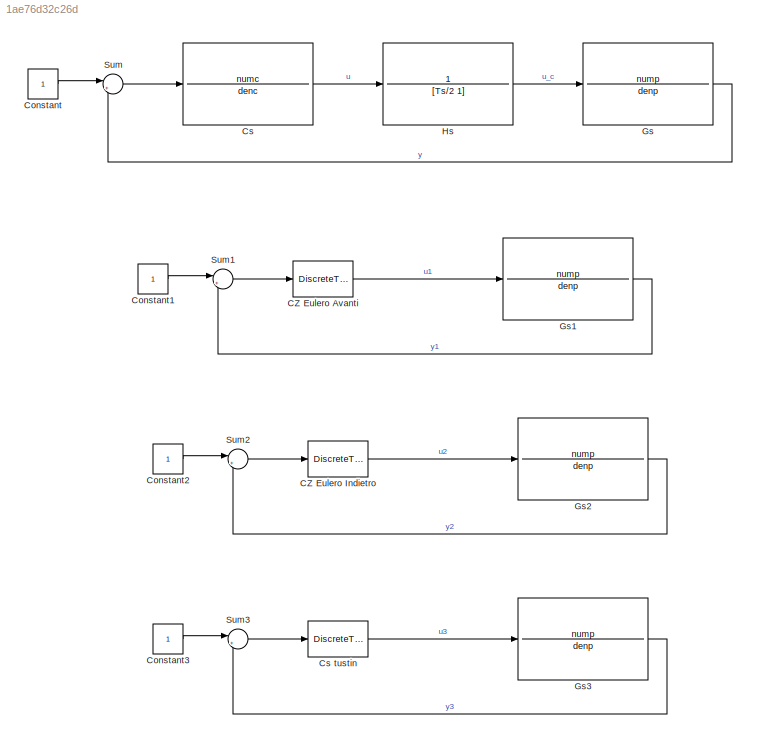
MODEL slx_1ae76d32c26d
KIND model
CONFIG AbsTol = auto
CONFIG EnableMultiTasking = off
CONFIG FixedStep = auto
CONFIG MaxStep = auto
CONFIG MinStep = auto
CONFIG RelTol = 1e-3
CONFIG SampleTimeConstraint = Unconstrained
CONFIG SolverName = VariableStepAuto
CONFIG StartTime = 0.0
CONFIG StopTime = 10
BLOCK [DiscreteTransferFcn] CZ Eulero Avanti
  Denominator = den1
  InputPortMap = u0
  Numerator = num1
  SampleTime = Ts
BLOCK [DiscreteTransferFcn] CZ Eulero Indietro
  Denominator = den2
  InputPortMap = u0
  Numerator = num2
  SampleTime = Ts
BLOCK [Constant] Constant
BLOCK [Constant] Constant1
  NameLocation = left
BLOCK [Constant] Constant2
BLOCK [Constant] Constant3
BLOCK [TransferFcn] Cs
  Denominator = denc
  Numerator = numc
BLOCK [DiscreteTransferFcn] Cs tustin
  Denominator = den3
  InputPortMap = u0
  Numerator = num3
  SampleTime = Ts
BLOCK [TransferFcn] Gs
  Denominator = denp
  Numerator = nump
BLOCK [TransferFcn] Gs1
  Denominator = denp
  Numerator = nump
BLOCK [TransferFcn] Gs2
  Denominator = denp
  Numerator = nump
BLOCK [TransferFcn] Gs3
  Denominator = denp
  Numerator = nump
BLOCK [TransferFcn] Hs
  Denominator = [Ts/2 1]
  Numerator = 1
BLOCK [Sum] Sum
  Inputs = |+-
BLOCK [Sum] Sum1
  Inputs = |+-
BLOCK [Sum] Sum2
  Inputs = |+-
BLOCK [Sum] Sum3
  Inputs = |+-
LINE CZ Eulero Avanti:1 -> Gs1:1
LINE CZ Eulero Indietro:1 -> Gs2:1
LINE Constant1:1 -> Sum1:1
LINE Constant2:1 -> Sum2:1
LINE Constant3:1 -> Sum3:1
LINE Constant:1 -> Sum:1
LINE Cs tustin:1 -> Gs3:1
LINE Cs:1 -> Hs:1
LINE Gs1:1 -> Sum1:2
LINE Gs2:1 -> Sum2:2
LINE Gs3:1 -> Sum3:2
LINE Gs:1 -> Sum:2
LINE Hs:1 -> Gs:1
LINE Sum1:1 -> CZ Eulero Avanti:1
LINE Sum2:1 -> CZ Eulero Indietro:1
LINE Sum3:1 -> Cs tustin:1
LINE Sum:1 -> Cs:1
